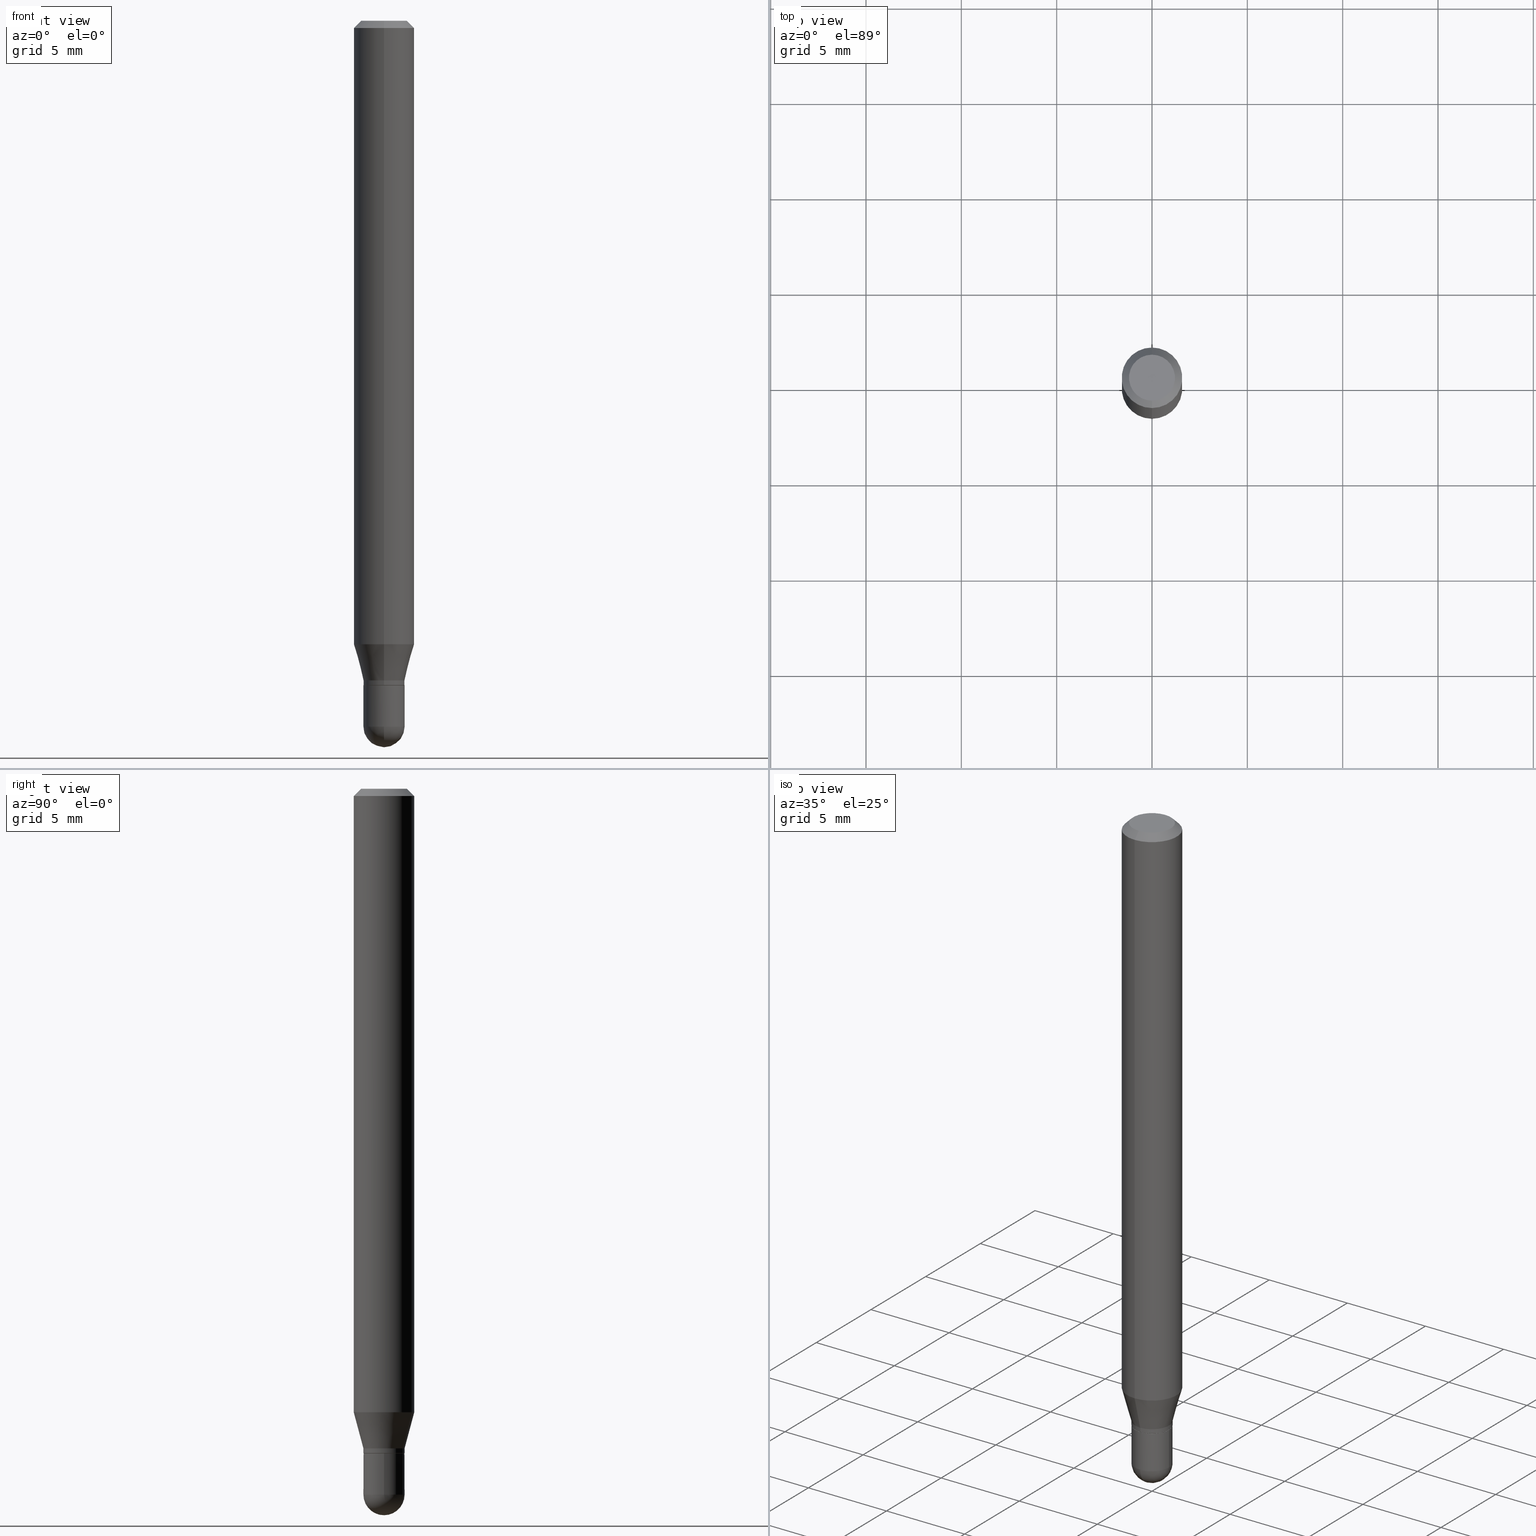
[diagram: canonical four-view strip — front | top / right | iso, engineering-drawing reading convention]
A machine part, canonical four-view strip (front | top / right | iso — engineering-drawing reading convention). The complete STEP part file that produces these views, byte-faithful:
ISO-10303-21;
HEADER;
FILE_DESCRIPTION (( 'STEP AP203' ),
    '1' );
FILE_NAME ('02529.STEP',
    '2024-03-07T20:15:55',
    ( '' ),
    ( '' ),
    'SwSTEP 2.0',
    'SolidWorks 2023',
    '' );
FILE_SCHEMA (( 'CONFIG_CONTROL_DESIGN' ));
ENDSEC;

DATA;
#1 = DIRECTION ( 'NONE',  ( -6.982962677686265922E-15, -1.000000000000000000, 6.427877632151193188E-15 ) ) ;
#2 = FACE_OUTER_BOUND ( 'NONE', #19, .T. ) ;
#3 = LINE ( 'NONE', #79, #253 ) ;
#4 = FACE_OUTER_BOUND ( 'NONE', #69, .T. ) ;
#5 = DIRECTION ( 'NONE',  ( -2.445394468719780989E-29, 3.491587794324560733E-15, 1.000000000000000000 ) ) ;
#6 = AXIS2_PLACEMENT_3D ( 'NONE', #236, #46, #199 ) ;
#7 = DIRECTION ( 'NONE',  ( 6.982962677686265922E-15, 1.000000000000000000, -3.483106191921935554E-15 ) ) ;
#8 = AXIS2_PLACEMENT_3D ( 'NONE', #455, #10, #167 ) ;
#9 = EDGE_CURVE ( 'NONE', #230, #142, #73, .T. ) ;
#10 = DIRECTION ( 'NONE',  ( -2.445394468719780989E-29, 3.491587794324560733E-15, 1.000000000000000000 ) ) ;
#11 = FACE_OUTER_BOUND ( 'NONE', #272, .T. ) ;
#12 = ORIENTED_EDGE ( 'NONE', *, *, #121, .F. ) ;
#13 = DIRECTION ( 'NONE',  ( 1.000000000000000000, 0.000000000000000000, 0.000000000000000000 ) ) ;
#14 = AXIS2_PLACEMENT_3D ( 'NONE', #249, #368, #246 ) ;
#15 = DATE_TIME_ROLE ( 'classification_date' ) ;
#16 = CC_DESIGN_PERSON_AND_ORGANIZATION_ASSIGNMENT ( #370, #407, ( #392 ) ) ;
#17 = DATE_AND_TIME ( #291, #104 ) ;
#18 = CARTESIAN_POINT ( 'NONE',  ( 3.355081211083539428E-29, -4.790458453813298029E-15, -1.372000000000000108 ) ) ;
#19 = EDGE_LOOP ( 'NONE', ( #446, #501, #499, #308 ) ) ;
#20 = DIRECTION ( 'NONE',  ( -2.445394468719780989E-29, 3.491587794324560733E-15, 1.000000000000000000 ) ) ;
#21 = AXIS2_PLACEMENT_3D ( 'NONE', #24, #299, #413 ) ;
#22 = AXIS2_PLACEMENT_3D ( 'NONE', #129, #474, #13 ) ;
#23 = VERTEX_POINT ( 'NONE', #362 ) ;
#24 = CARTESIAN_POINT ( 'NONE',  ( 3.560636328285825248E-29, -5.094038800260261442E-15, -1.457500000000000240 ) ) ;
#25 = ORIENTED_EDGE ( 'NONE', *, *, #77, .F. ) ;
#26 = DIRECTION ( 'NONE',  ( -6.982962677686265922E-15, -1.000000000000000000, 3.483106191921935554E-15 ) ) ;
#27 = CC_DESIGN_DATE_AND_TIME_ASSIGNMENT ( #220, #15, ( #217 ) ) ;
#28 = ORIENTED_EDGE ( 'NONE', *, *, #228, .F. ) ;
#29 = DIRECTION ( 'NONE',  ( -2.445394468719780989E-29, 3.491587794324560733E-15, 1.000000000000000000 ) ) ;
#30 = VECTOR ( 'NONE', #484, 39.37007874015748143 ) ;
#31 = VERTEX_POINT ( 'NONE', #154 ) ;
#32 = AXIS2_PLACEMENT_3D ( 'NONE', #307, #29, #112 ) ;
#33 = DIRECTION ( 'NONE',  ( -6.982962677686265922E-15, -1.000000000000000000, 6.504399984914913214E-15 ) ) ;
#34 = EDGE_LOOP ( 'NONE', ( #284, #140, #419, #267 ) ) ;
#35 = PRODUCT_RELATED_PRODUCT_CATEGORY ( 'detail', '', ( #282 ) ) ;
#36 = DIRECTION ( 'NONE',  ( -2.445394468719780989E-29, 3.491587794324560733E-15, 1.000000000000000000 ) ) ;
#37 = ORIENTED_EDGE ( 'NONE', *, *, #488, .F. ) ;
#38 = CARTESIAN_POINT ( 'NONE',  ( -2.932844324627895747E-16, -0.04200000000000478351, -1.371999999999999664 ) ) ;
#39 = DIRECTION ( 'NONE',  ( -6.982962677686265922E-15, -1.000000000000000000, 6.504399984914913214E-15 ) ) ;
#40 = AXIS2_PLACEMENT_3D ( 'NONE', #377, #218, #48 ) ;
#41 = CC_DESIGN_APPROVAL ( #146, ( #119 ) ) ;
#42 = PERSON ( 'UNSPECIFIED', 'UNSPECIFIED', 'UNSPECIFIED', ('UNSPECIFIED'), ('UNSPECIFIED'), ('UNSPECIFIED') ) ;
#43 = PRODUCT_DEFINITION_SHAPE ( 'NONE', 'NONE',  #119 ) ;
#44 = FACE_OUTER_BOUND ( 'NONE', #113, .T. ) ;
#45 = DIRECTION ( 'NONE',  ( -2.445394468719780989E-29, 3.491587794324560733E-15, 1.000000000000000000 ) ) ;
#46 = DIRECTION ( 'NONE',  ( -2.445394468719780989E-29, 3.491587794324560733E-15, 1.000000000000000000 ) ) ;
#47 = APPLICATION_PROTOCOL_DEFINITION ( 'international standard', 'config_control_design', 1994, #435 ) ;
#48 = DIRECTION ( 'NONE',  ( -6.982962677686265922E-15, -1.000000000000000000, 4.370956789862821150E-15 ) ) ;
#49 = EDGE_CURVE ( 'NONE', #116, #31, #68, .T. ) ;
#50 = COORDINATED_UNIVERSAL_TIME_OFFSET ( 5, 0, .BEHIND. ) ;
#51 = CARTESIAN_POINT ( 'NONE',  ( -4.287811248607203282E-16, -0.06250000000000005551, -0.01500000000000011047 ) ) ;
#52 = ORIENTED_EDGE ( 'NONE', *, *, #9, .F. ) ;
#53 = APPROVAL_DATE_TIME ( #252, #71 ) ;
#54 = AXIS2_PLACEMENT_3D ( 'NONE', #200, #147, #26 ) ;
#55 = FACE_OUTER_BOUND ( 'NONE', #504, .T. ) ;
#56 = ORIENTED_EDGE ( 'NONE', *, *, #319, .T. ) ;
#57 = DIRECTION ( 'NONE',  ( -2.445468806185136597E-29, 3.491481338843145583E-15, 1.000000000000000000 ) ) ;
#58 = VERTEX_POINT ( 'NONE', #509 ) ;
#59 = CARTESIAN_POINT ( 'NONE',  ( 3.564270785014837509E-29, -5.088834051363884851E-15, -1.457500000000000240 ) ) ;
#60 = AXIS2_PLACEMENT_3D ( 'NONE', #59, #302, #460 ) ;
#61 = CONICAL_SURFACE ( 'NONE', #239, 0.06250000000000000000, 0.7853981633974483900 ) ;
#62 = ORIENTED_EDGE ( 'NONE', *, *, #183, .T. ) ;
#63 = DIRECTION ( 'NONE',  ( -2.445394468719780989E-29, 3.491587794324560733E-15, 1.000000000000000000 ) ) ;
#64 = ORIENTED_EDGE ( 'NONE', *, *, #315, .T. ) ;
#65 = CARTESIAN_POINT ( 'NONE',  ( 8.024363653944371888E-45, -1.145736221690308008E-30, -3.281418910767924715E-16 ) ) ;
#66 = ORIENTED_EDGE ( 'NONE', *, *, #95, .T. ) ;
#67 = DIRECTION ( 'NONE',  ( 1.000000000000000000, -6.982962677686266711E-15, 4.876176775795935793E-29 ) ) ;
#68 = CIRCLE ( 'NONE', #6, 0.04249999999999991979 ) ;
#69 = EDGE_LOOP ( 'NONE', ( #343, #409, #56, #461 ) ) ;
#70 = AXIS2_PLACEMENT_3D ( 'NONE', #18, #271, #463 ) ;
#71 = APPROVAL ( #176, 'UNSPECIFIED' ) ;
#72 = DIRECTION ( 'NONE',  ( 6.982962677686265922E-15, 1.000000000000000000, -3.491587794324560733E-15 ) ) ;
#73 = LINE ( 'NONE', #475, #324 ) ;
#74 = EDGE_CURVE ( 'NONE', #373, #23, #224, .T. ) ;
#75 = FACE_OUTER_BOUND ( 'NONE', #223, .T. ) ;
#76 = DIRECTION ( 'NONE',  ( -2.445394468719780989E-29, 3.491587794324560733E-15, 1.000000000000000000 ) ) ;
#77 = EDGE_CURVE ( 'NONE', #303, #171, #273, .T. ) ;
#78 = CARTESIAN_POINT ( 'NONE',  ( 3.019806626980753384E-16, 0.04249999999999517358, -1.362000000000000766 ) ) ;
#79 = CARTESIAN_POINT ( 'NONE',  ( 4.440892098500625669E-16, 0.06250000000000000000, -2.182242371452850211E-16 ) ) ;
#80 = LOCAL_TIME ( 15, 15, 55.00000000000000000, #371 ) ;
#81 = PERSON_AND_ORGANIZATION ( #42, #356 ) ;
#82 = ADVANCED_FACE ( 'NONE', ( #44 ), #506, .T. ) ;
#83 = DIRECTION ( 'NONE',  ( -2.445394468719780989E-29, 3.491587794324560733E-15, 1.000000000000000000 ) ) ;
#84 = EDGE_LOOP ( 'NONE', ( #496, #62, #375, #232 ) ) ;
#85 =( CONVERSION_BASED_UNIT ( 'INCH', #281 ) LENGTH_UNIT ( ) NAMED_UNIT ( #424 ) );
#86 = CARTESIAN_POINT ( 'NONE',  ( 3.019806626980785432E-16, 0.04249999999999495154, -1.457500000000000462 ) ) ;
#87 = AXIS2_PLACEMENT_3D ( 'NONE', #482, #495, #97 ) ;
#88 = AXIS2_PLACEMENT_3D ( 'NONE', #106, #309, #305 ) ;
#89 = DIRECTION ( 'NONE',  ( -2.445394468719780989E-29, 3.491587794324560733E-15, 1.000000000000000000 ) ) ;
#90 = ORIENTED_EDGE ( 'NONE', *, *, #108, .F. ) ;
#91 = PERSON_AND_ORGANIZATION_ROLE ( 'classification_officer' ) ;
#92 = COORDINATED_UNIVERSAL_TIME_OFFSET ( 5, 0, .BEHIND. ) ;
#93 = CIRCLE ( 'NONE', #60, 0.04250000000000000999 ) ;
#94 = VECTOR ( 'NONE', #380, 39.37007874015748143 ) ;
#95 = EDGE_CURVE ( 'NONE', #256, #373, #210, .T. ) ;
#96 = COORDINATED_UNIVERSAL_TIME_OFFSET ( 5, 0, .BEHIND. ) ;
#97 = DIRECTION ( 'NONE',  ( -6.982962677686266711E-15, -1.000000000000000000, 3.491587794324560733E-15 ) ) ;
#98 = EDGE_CURVE ( 'NONE', #326, #142, #3, .T. ) ;
#99 = ORIENTED_EDGE ( 'NONE', *, *, #175, .F. ) ;
#100 = PERSON_AND_ORGANIZATION ( #42, #356 ) ;
#101 = FACE_OUTER_BOUND ( 'NONE', #436, .T. ) ;
#102 = ORIENTED_EDGE ( 'NONE', *, *, #488, .T. ) ;
#103 = CARTESIAN_POINT ( 'NONE',  ( 3.730349362740847299E-16, 0.04249999999999517358, -1.362000000000000766 ) ) ;
#104 = LOCAL_TIME ( 15, 15, 55.00000000000000000, #358 ) ;
#105 = ORIENTED_EDGE ( 'NONE', *, *, #422, .T. ) ;
#106 = CARTESIAN_POINT ( 'NONE',  ( 3.564270785014837509E-29, -5.088834051363884851E-15, -1.457500000000000240 ) ) ;
#107 = ORIENTED_EDGE ( 'NONE', *, *, #228, .T. ) ;
#108 = EDGE_CURVE ( 'NONE', #387, #262, #485, .T. ) ;
#109 = PLANE ( 'NONE',  #502 ) ;
#110 = EDGE_CURVE ( 'NONE', #168, #230, #216, .T. ) ;
#111 = ORIENTED_EDGE ( 'NONE', *, *, #292, .T. ) ;
#112 = DIRECTION ( 'NONE',  ( -6.982962677686265922E-15, -1.000000000000000000, 4.370956789862821150E-15 ) ) ;
#113 = EDGE_LOOP ( 'NONE', ( #186, #184, #145, #25 ) ) ;
#114 = CIRCLE ( 'NONE', #88, 0.04250000000000000999 ) ;
#115 = CARTESIAN_POINT ( 'NONE',  ( 0.04250000000000000999, -5.236349137930008608E-15, -1.457500000000000240 ) ) ;
#116 = VERTEX_POINT ( 'NONE', #122 ) ;
#117 = APPROVAL_DATE_TIME ( #364, #146 ) ;
#118 = DIRECTION ( 'NONE',  ( 4.937700262164548042E-15, 0.7071067811865451302, -0.7071067811865499042 ) ) ;
#119 = PRODUCT_DEFINITION ( 'UNKNOWN', '', #392, #353 ) ;
#120 = CARTESIAN_POINT ( 'NONE',  ( 3.560636328285825248E-29, -5.094038800260261442E-15, -1.457500000000000240 ) ) ;
#121 = EDGE_CURVE ( 'NONE', #301, #385, #344, .T. ) ;
#122 = CARTESIAN_POINT ( 'NONE',  ( -2.967759138016312999E-16, -0.04250000000000458272, -1.371499999999999941 ) ) ;
#123 = AXIS2_PLACEMENT_3D ( 'NONE', #512, #237, #67 ) ;
#124 = DIRECTION ( 'NONE',  ( 1.000000000000000000, -6.982962677686265922E-15, 4.883557194083112901E-29 ) ) ;
#125 = DIRECTION ( 'NONE',  ( 1.839019923739598738E-15, 0.2588190451025247363, 0.9659258262890673130 ) ) ;
#126 = CC_DESIGN_PERSON_AND_ORGANIZATION_ASSIGNMENT ( #134, #457, ( #392 ) ) ;
#127 = LINE ( 'NONE', #137, #451 ) ;
#128 = ORIENTED_EDGE ( 'NONE', *, *, #393, .T. ) ;
#129 = CARTESIAN_POINT ( 'NONE',  ( 0.000000000000000000, 0.000000000000000000, 0.000000000000000000 ) ) ;
#130 = LINE ( 'NONE', #442, #293 ) ;
#131 = AXIS2_PLACEMENT_3D ( 'NONE', #170, #338, #334 ) ;
#132 = LOCAL_TIME ( 15, 15, 55.00000000000000000, #50 ) ;
#133 = ADVANCED_FACE ( 'NONE', ( #204 ), #162, .T. ) ;
#134 = PERSON_AND_ORGANIZATION ( #42, #356 ) ;
#135 = SECURITY_CLASSIFICATION_LEVEL ( 'unclassified' ) ;
#136 = AXIS2_PLACEMENT_3D ( 'NONE', #389, #5, #39 ) ;
#137 = CARTESIAN_POINT ( 'NONE',  ( -2.967759138016657633E-16, -0.04249999999999991979, 1.483924812587935590E-16 ) ) ;
#138 = ORIENTED_EDGE ( 'NONE', *, *, #110, .T. ) ;
#139 = CARTESIAN_POINT ( 'NONE',  ( 3.560636328285825248E-29, -5.094038800260261442E-15, -1.457500000000000240 ) ) ;
#140 = ORIENTED_EDGE ( 'NONE', *, *, #348, .T. ) ;
#141 = CARTESIAN_POINT ( 'NONE',  ( 3.668091703079751796E-31, -5.237381691486955188E-17, -0.01500000000000032904 ) ) ;
#142 = VERTEX_POINT ( 'NONE', #157 ) ;
#143 = FACE_OUTER_BOUND ( 'NONE', #494, .T. ) ;
#144 = CC_DESIGN_APPROVAL ( #360, ( #392 ) ) ;
#145 = ORIENTED_EDGE ( 'NONE', *, *, #331, .F. ) ;
#146 = APPROVAL ( #321, 'UNSPECIFIED' ) ;
#147 = DIRECTION ( 'NONE',  ( -2.445394468719780989E-29, 3.491587794324560733E-15, 1.000000000000000000 ) ) ;
#148 = EDGE_LOOP ( 'NONE', ( #99, #347, #440, #250, #464 ) ) ;
#149 = LINE ( 'NONE', #346, #202 ) ;
#150 = CARTESIAN_POINT ( 'NONE',  ( 0.000000000000000000, 0.000000000000000000, 0.000000000000000000 ) ) ;
#151 = CARTESIAN_POINT ( 'NONE',  ( 3.330627266396342627E-29, -4.755542575870053124E-15, -1.362000000000000322 ) ) ;
#152 = EDGE_CURVE ( 'NONE', #168, #171, #438, .T. ) ;
#153 = VECTOR ( 'NONE', #125, 39.37007874015748854 ) ;
#154 = CARTESIAN_POINT ( 'NONE',  ( 3.019806626980764231E-16, 0.04249999999999526379, -1.371500000000000385 ) ) ;
#155 = AXIS2_PLACEMENT_3D ( 'NONE', #141, #397, #247 ) ;
#156 = FACE_OUTER_BOUND ( 'NONE', #219, .T. ) ;
#157 = CARTESIAN_POINT ( 'NONE',  ( 4.440892098500942692E-16, 0.06249999999999995143, -0.01500000000000054588 ) ) ;
#158 = EDGE_CURVE ( 'NONE', #350, #256, #93, .T. ) ;
#159 = FACE_OUTER_BOUND ( 'NONE', #189, .T. ) ;
#160 = ORIENTED_EDGE ( 'NONE', *, *, #77, .T. ) ;
#161 = CARTESIAN_POINT ( 'NONE',  ( 3.355081211083539428E-29, -4.790458453813298029E-15, -1.372000000000000108 ) ) ;
#162 = SPHERICAL_SURFACE ( 'NONE', #477, 0.04250000000000009326 ) ;
#163 = AXIS2_PLACEMENT_3D ( 'NONE', #374, #20, #492 ) ;
#164 = AXIS2_PLACEMENT_3D ( 'NONE', #65, #63, #467 ) ;
#165 = DIRECTION ( 'NONE',  ( -6.982962677686265922E-15, -1.000000000000000000, 6.504399984914913214E-15 ) ) ;
#166 = EDGE_CURVE ( 'NONE', #326, #303, #469, .T. ) ;
#167 = DIRECTION ( 'NONE',  ( -6.982962677686265133E-15, -1.000000000000000000, 6.427877632151217642E-15 ) ) ;
#168 = VERTEX_POINT ( 'NONE', #213 ) ;
#169 = CARTESIAN_POINT ( 'NONE',  ( 3.668091703079751796E-31, -5.237381691486955188E-17, -0.01500000000000032904 ) ) ;
#170 = CARTESIAN_POINT ( 'NONE',  ( 3.355081211083539428E-29, -4.790458453813298029E-15, -1.372000000000000108 ) ) ;
#171 = VERTEX_POINT ( 'NONE', #327 ) ;
#172 = DIRECTION ( 'NONE',  ( -6.982962677686265922E-15, -1.000000000000000000, 6.427877632151193188E-15 ) ) ;
#173 = AXIS2_PLACEMENT_3D ( 'NONE', #139, #458, #257 ) ;
#174 =( GEOMETRIC_REPRESENTATION_CONTEXT ( 3 ) GLOBAL_UNCERTAINTY_ASSIGNED_CONTEXT ( ( #447 ) ) GLOBAL_UNIT_ASSIGNED_CONTEXT ( ( #85, #323, #206 ) ) REPRESENTATION_CONTEXT ( 'NONE', 'WORKASPACE' ) );
#175 = EDGE_CURVE ( 'NONE', #373, #58, #130, .T. ) ;
#176 = APPROVAL_STATUS ( 'not_yet_approved' ) ;
#177 = CARTESIAN_POINT ( 'NONE',  ( 3.840629472727447874E-16, 0.04749999999999999362, -4.939923113072091241E-16 ) ) ;
#178 = ORIENTED_EDGE ( 'NONE', *, *, #335, .F. ) ;
#179 = DATE_TIME_ROLE ( 'creation_date' ) ;
#180 = AXIS2_PLACEMENT_3D ( 'NONE', #207, #76, #240 ) ;
#181 = AXIS2_PLACEMENT_3D ( 'NONE', #161, #391, #165 ) ;
#182 = FACE_OUTER_BOUND ( 'NONE', #379, .T. ) ;
#183 = EDGE_CURVE ( 'NONE', #298, #23, #354, .T. ) ;
#184 = ORIENTED_EDGE ( 'NONE', *, *, #98, .T. ) ;
#185 = CARTESIAN_POINT ( 'NONE',  ( 0.000000000000000000, 0.000000000000000000, 0.000000000000000000 ) ) ;
#186 = ORIENTED_EDGE ( 'NONE', *, *, #416, .T. ) ;
#187 = DIRECTION ( 'NONE',  ( -1.000000000000000000, 6.982962677686265922E-15, -4.876176775795935793E-29 ) ) ;
#188 = ADVANCED_FACE ( 'NONE', ( #101 ), #390, .T. ) ;
#189 = EDGE_LOOP ( 'NONE', ( #381, #318, #352, #196 ) ) ;
#190 = CC_DESIGN_PERSON_AND_ORGANIZATION_ASSIGNMENT ( #81, #241, ( #282 ) ) ;
#191 = CARTESIAN_POINT ( 'NONE',  ( -0.04250000000000000999, -4.637592561430298716E-15, -1.457500000000000240 ) ) ;
#192 = CLOSED_SHELL ( 'NONE', ( #203, #242, #188, #82, #363, #275, #197, #487, #427, #310, #498, #476 ) ) ;
#193 = CIRCLE ( 'NONE', #294, 0.04249999999999991979 ) ;
#194 = ORIENTED_EDGE ( 'NONE', *, *, #418, .F. ) ;
#195 = PLANE ( 'NONE',  #437 ) ;
#196 = ORIENTED_EDGE ( 'NONE', *, *, #264, .T. ) ;
#197 = ADVANCED_FACE ( 'NONE', ( #225 ), #367, .T. ) ;
#198 = CARTESIAN_POINT ( 'NONE',  ( 2.984279490192755246E-16, 0.04199999999999520783, -1.372000000000000330 ) ) ;
#199 = DIRECTION ( 'NONE',  ( -6.982962677686266711E-15, -1.000000000000000000, 6.427877632151220009E-15 ) ) ;
#200 = CARTESIAN_POINT ( 'NONE',  ( 3.668091703079751796E-31, -5.237381691486955188E-17, -0.01500000000000032904 ) ) ;
#201 = CLOSED_SHELL ( 'NONE', ( #215, #508, #406, #133, #333 ) ) ;
#202 = VECTOR ( 'NONE', #36, 39.37007874015748143 ) ;
#203 = ADVANCED_FACE ( 'NONE', ( #11 ), #328, .T. ) ;
#204 = FACE_OUTER_BOUND ( 'NONE', #84, .T. ) ;
#205 = DIRECTION ( 'NONE',  ( -2.445468806185136597E-29, 3.491481338843145583E-15, 1.000000000000000000 ) ) ;
#206 =( NAMED_UNIT ( * ) SI_UNIT ( $, .STERADIAN. ) SOLID_ANGLE_UNIT ( ) );
#207 = CARTESIAN_POINT ( 'NONE',  ( 3.330627266396342627E-29, -4.755542575870053124E-15, -1.362000000000000322 ) ) ;
#208 = CARTESIAN_POINT ( 'NONE',  ( 3.355183202086007133E-29, -4.790312396892795908E-15, -1.372000000000000108 ) ) ;
#209 = DIRECTION ( 'NONE',  ( -2.445394468719780989E-29, 3.491587794324560733E-15, 1.000000000000000000 ) ) ;
#210 = CIRCLE ( 'NONE', #312, 0.04250000000000000999 ) ;
#211 = CIRCLE ( 'NONE', #32, 0.06250000000000000000 ) ;
#212 = CALENDAR_DATE ( 2024, 7, 3 ) ;
#213 = CARTESIAN_POINT ( 'NONE',  ( -3.773273898774340269E-16, -0.04749999999999999362, -1.622914708463758436E-16 ) ) ;
#214 = APPLICATION_PROTOCOL_DEFINITION ( 'international standard', 'config_control_design', 1994, #222 ) ;
#215 = ADVANCED_FACE ( 'NONE', ( #182 ), #410, .T. ) ;
#216 = CIRCLE ( 'NONE', #365, 0.04749999999999999362 ) ;
#217 = SECURITY_CLASSIFICATION ( '', '', #135 ) ;
#218 = DIRECTION ( 'NONE',  ( -2.445394468719780989E-29, 3.491587794324560733E-15, 1.000000000000000000 ) ) ;
#219 = EDGE_LOOP ( 'NONE', ( #265, #414, #227, #402 ) ) ;
#220 = DATE_AND_TIME ( #450, #277 ) ;
#221 = DIRECTION ( 'NONE',  ( -6.982962677686266711E-15, -1.000000000000000000, 6.427877632151220009E-15 ) ) ;
#222 = APPLICATION_CONTEXT ( 'configuration controlled 3d designs of mechanical parts and assemblies' ) ;
#223 = EDGE_LOOP ( 'NONE', ( #423, #138 ) ) ;
#224 = CIRCLE ( 'NONE', #399, 0.04250000000000000999 ) ;
#225 = FACE_OUTER_BOUND ( 'NONE', #383, .T. ) ;
#226 = CC_DESIGN_SECURITY_CLASSIFICATION ( #217, ( #392 ) ) ;
#227 = ORIENTED_EDGE ( 'NONE', *, *, #416, .F. ) ;
#228 = EDGE_CURVE ( 'NONE', #116, #262, #127, .T. ) ;
#229 = DIRECTION ( 'NONE',  ( 2.438088387897960049E-29, -3.491481338843145188E-15, -1.000000000000000000 ) ) ;
#230 = VERTEX_POINT ( 'NONE', #177 ) ;
#231 = FACE_OUTER_BOUND ( 'NONE', #148, .T. ) ;
#232 = ORIENTED_EDGE ( 'NONE', *, *, #95, .F. ) ;
#233 = LINE ( 'NONE', #500, #369 ) ;
#234 = ORIENTED_EDGE ( 'NONE', *, *, #110, .F. ) ;
#235 = CARTESIAN_POINT ( 'NONE',  ( 4.440892098500941706E-16, 0.06249999999999553135, -1.287358983848623017 ) ) ;
#236 = CARTESIAN_POINT ( 'NONE',  ( 3.353858513849179896E-29, -4.788712659916135389E-15, -1.371500000000000163 ) ) ;
#237 = DIRECTION ( 'NONE',  ( -2.445468806185136597E-29, 3.491481338843145583E-15, 1.000000000000000000 ) ) ;
#238 = DIRECTION ( 'NONE',  ( -6.982962677686266711E-15, -1.000000000000000000, 3.491587794324561127E-15 ) ) ;
#239 = AXIS2_PLACEMENT_3D ( 'NONE', #169, #274, #7 ) ;
#240 = DIRECTION ( 'NONE',  ( -6.982962677686265133E-15, -1.000000000000000000, 6.427877632151217642E-15 ) ) ;
#241 = PERSON_AND_ORGANIZATION_ROLE ( 'design_owner' ) ;
#242 = ADVANCED_FACE ( 'NONE', ( #283 ), #286, .T. ) ;
#243 = EDGE_CURVE ( 'NONE', #298, #256, #330, .T. ) ;
#244 = DIRECTION ( 'NONE',  ( -2.445394468719780989E-29, 3.491587794324560733E-15, 1.000000000000000000 ) ) ;
#245 = DIRECTION ( 'NONE',  ( 1.000000000000000000, -6.982962677686276177E-15, 0.000000000000000000 ) ) ;
#246 = DIRECTION ( 'NONE',  ( 6.982962677686265922E-15, 1.000000000000000000, -3.483106191921935554E-15 ) ) ;
#247 = DIRECTION ( 'NONE',  ( -6.982962677686265922E-15, -1.000000000000000000, 3.483106191921935554E-15 ) ) ;
#248 = CARTESIAN_POINT ( 'NONE',  ( 0.000000000000000000, 0.000000000000000000, 0.000000000000000000 ) ) ;
#249 = CARTESIAN_POINT ( 'NONE',  ( 3.668091703079751796E-31, -5.237381691486955188E-17, -0.01500000000000032904 ) ) ;
#250 = ORIENTED_EDGE ( 'NONE', *, *, #335, .T. ) ;
#251 = ADVANCED_BREP_SHAPE_REPRESENTATION ( '02529', ( #300, #297, #22 ), #174 ) ;
#252 = DATE_AND_TIME ( #329, #453 ) ;
#253 = VECTOR ( 'NONE', #244, 39.37007874015748143 ) ;
#254 = VECTOR ( 'NONE', #417, 39.37007874015748143 ) ;
#255 = DIRECTION ( 'NONE',  ( -2.445468806185136877E-29, 3.491481338843145188E-15, 1.000000000000000000 ) ) ;
#256 = VERTEX_POINT ( 'NONE', #86 ) ;
#257 = DIRECTION ( 'NONE',  ( 7.105427357601001070E-15, 1.000000000000000000, 0.000000000000000000 ) ) ;
#258 = ORIENTED_EDGE ( 'NONE', *, *, #264, .F. ) ;
#259 = VECTOR ( 'NONE', #394, 39.37007874015748143 ) ;
#260 = APPROVAL_PERSON_ORGANIZATION ( #395, #146, #398 ) ;
#261 = DIRECTION ( 'NONE',  ( -2.445468806185136877E-29, 3.491481338843145188E-15, 1.000000000000000000 ) ) ;
#262 = VERTEX_POINT ( 'NONE', #497 ) ;
#263 = DIRECTION ( 'NONE',  ( -6.982962677686265133E-15, -1.000000000000000000, 6.427877632151217642E-15 ) ) ;
#264 = EDGE_CURVE ( 'NONE', #142, #171, #428, .T. ) ;
#265 = ORIENTED_EDGE ( 'NONE', *, *, #420, .T. ) ;
#266 = DIRECTION ( 'NONE',  ( -2.445394468719780989E-29, 3.491587794324560733E-15, 1.000000000000000000 ) ) ;
#267 = ORIENTED_EDGE ( 'NONE', *, *, #319, .F. ) ;
#268 = CARTESIAN_POINT ( 'NONE',  ( 3.316907271900976096E-16, 0.04749999999999999362, -3.299213657688128390E-16 ) ) ;
#269 = CARTESIAN_POINT ( 'NONE',  ( 8.024363653944371888E-45, -1.145736221690308008E-30, -3.281418910767924715E-16 ) ) ;
#270 = CC_DESIGN_PERSON_AND_ORGANIZATION_ASSIGNMENT ( #290, #91, ( #217 ) ) ;
#271 = DIRECTION ( 'NONE',  ( -2.445394468719780429E-29, 3.491587794324560733E-15, 1.000000000000000000 ) ) ;
#272 = EDGE_LOOP ( 'NONE', ( #359, #64, #336, #28 ) ) ;
#273 = LINE ( 'NONE', #311, #259 ) ;
#274 = DIRECTION ( 'NONE',  ( 2.445394468719780989E-29, -3.491587794324560733E-15, -1.000000000000000000 ) ) ;
#275 = ADVANCED_FACE ( 'NONE', ( #296 ), #376, .T. ) ;
#276 = AXIS2_PLACEMENT_3D ( 'NONE', #150, #83, #471 ) ;
#277 = LOCAL_TIME ( 15, 15, 55.00000000000000000, #96 ) ;
#278 = CC_DESIGN_APPROVAL ( #71, ( #217 ) ) ;
#279 = MECHANICAL_CONTEXT ( 'NONE', #222, 'mechanical' ) ;
#280 = CARTESIAN_POINT ( 'NONE',  ( 3.564270785014837509E-29, -5.088834051363884851E-15, -1.457500000000000240 ) ) ;
#281 = LENGTH_MEASURE_WITH_UNIT ( LENGTH_MEASURE( 0.02539999999999999897 ), #439 );
#282 = PRODUCT ( '02529', '02529', '', ( #279 ) ) ;
#283 = FACE_OUTER_BOUND ( 'NONE', #34, .T. ) ;
#284 = ORIENTED_EDGE ( 'NONE', *, *, #121, .T. ) ;
#285 = PERSON_AND_ORGANIZATION ( #42, #356 ) ;
#286 = CONICAL_SURFACE ( 'NONE', #131, 0.04199999999999999567, 0.7853981633974739252 ) ;
#287 = CARTESIAN_POINT ( 'NONE',  ( 3.662751524184187344E-29, -5.245029131609283457E-15, -1.500000000000000444 ) ) ;
#288 = CIRCLE ( 'NONE', #444, 0.04249999999999993366 ) ;
#289 = ORIENTED_EDGE ( 'NONE', *, *, #175, .T. ) ;
#290 = PERSON_AND_ORGANIZATION ( #42, #356 ) ;
#291 = CALENDAR_DATE ( 2024, 7, 3 ) ;
#292 = EDGE_CURVE ( 'NONE', #31, #116, #193, .T. ) ;
#293 = VECTOR ( 'NONE', #255, 39.37007874015748143 ) ;
#294 = AXIS2_PLACEMENT_3D ( 'NONE', #401, #89, #221 ) ;
#295 = CALENDAR_DATE ( 2024, 7, 3 ) ;
#296 = FACE_OUTER_BOUND ( 'NONE', #426, .T. ) ;
#297 = MANIFOLD_SOLID_BREP ( 'Body-Move/Copy2[2]', #192 ) ;
#298 = VERTEX_POINT ( 'NONE', #287 ) ;
#299 = DIRECTION ( 'NONE',  ( -1.000000000000000000, 6.982962677686265922E-15, -4.883557194083112340E-29 ) ) ;
#300 = MANIFOLD_SOLID_BREP ( 'Body-Move/Copy2[1]', #201 ) ;
#301 = VERTEX_POINT ( 'NONE', #445 ) ;
#302 = DIRECTION ( 'NONE',  ( -2.445468806185136597E-29, 3.491481338843145583E-15, 1.000000000000000000 ) ) ;
#303 = VERTEX_POINT ( 'NONE', #405 ) ;
#304 = APPROVAL_PERSON_ORGANIZATION ( #448, #360, #332 ) ;
#305 = DIRECTION ( 'NONE',  ( 1.000000000000000000, -6.982962677686273810E-15, 0.000000000000000000 ) ) ;
#306 = ORIENTED_EDGE ( 'NONE', *, *, #331, .T. ) ;
#307 = CARTESIAN_POINT ( 'NONE',  ( 3.148100538360140027E-29, -4.494926914919920773E-15, -1.287358983848622795 ) ) ;
#308 = ORIENTED_EDGE ( 'NONE', *, *, #378, .F. ) ;
#309 = DIRECTION ( 'NONE',  ( -2.445468806185136597E-29, 3.491481338843145583E-15, 1.000000000000000000 ) ) ;
#310 = ADVANCED_FACE ( 'NONE', ( #55 ), #372, .F. ) ;
#311 = CARTESIAN_POINT ( 'NONE',  ( -4.364351673553916201E-16, -0.06250000000000000000, 2.182242371452850211E-16 ) ) ;
#312 = AXIS2_PLACEMENT_3D ( 'NONE', #396, #433, #480 ) ;
#313 = FACE_OUTER_BOUND ( 'NONE', #466, .T. ) ;
#314 = CONICAL_SURFACE ( 'NONE', #429, 0.04249999999999993366, 0.2617993877991500740 ) ;
#315 = EDGE_CURVE ( 'NONE', #31, #387, #149, .T. ) ;
#316 = DIRECTION ( 'NONE',  ( 1.000000000000000000, -6.982962677686273810E-15, 0.000000000000000000 ) ) ;
#317 = DIRECTION ( 'NONE',  ( -2.445394468719780989E-29, 3.491587794324560733E-15, 1.000000000000000000 ) ) ;
#318 = ORIENTED_EDGE ( 'NONE', *, *, #403, .F. ) ;
#319 = EDGE_CURVE ( 'NONE', #301, #116, #355, .T. ) ;
#320 = CC_DESIGN_PERSON_AND_ORGANIZATION_ASSIGNMENT ( #285, #434, ( #119 ) ) ;
#321 = APPROVAL_STATUS ( 'not_yet_approved' ) ;
#322 = ORIENTED_EDGE ( 'NONE', *, *, #98, .F. ) ;
#323 =( NAMED_UNIT ( * ) PLANE_ANGLE_UNIT ( ) SI_UNIT ( $, .RADIAN. ) );
#324 = VECTOR ( 'NONE', #118, 39.37007874015748143 ) ;
#325 = CIRCLE ( 'NONE', #493, 0.04199999999999999567 ) ;
#326 = VERTEX_POINT ( 'NONE', #235 ) ;
#327 = CARTESIAN_POINT ( 'NONE',  ( -4.364351673553912750E-16, -0.06250000000000005551, -0.01500000000000011047 ) ) ;
#328 = CYLINDRICAL_SURFACE ( 'NONE', #87, 0.04249999999999991979 ) ;
#329 = CALENDAR_DATE ( 2024, 7, 3 ) ;
#330 = CIRCLE ( 'NONE', #173, 0.04250000000000009326 ) ;
#331 = EDGE_CURVE ( 'NONE', #171, #142, #408, .T. ) ;
#332 = APPROVAL_ROLE ( '' ) ;
#333 = ADVANCED_FACE ( 'NONE', ( #231 ), #349, .T. ) ;
#334 = DIRECTION ( 'NONE',  ( -6.982962677686265922E-15, -1.000000000000000000, 6.504399984914913214E-15 ) ) ;
#335 = EDGE_CURVE ( 'NONE', #350, #443, #421, .T. ) ;
#336 = ORIENTED_EDGE ( 'NONE', *, *, #420, .F. ) ;
#337 = CIRCLE ( 'NONE', #452, 0.04249999999999999611 ) ;
#338 = DIRECTION ( 'NONE',  ( -2.445394468719780989E-29, 3.491587794324560733E-15, 1.000000000000000000 ) ) ;
#339 = ORIENTED_EDGE ( 'NONE', *, *, #158, .T. ) ;
#340 = DIRECTION ( 'NONE',  ( 1.000000000000000000, -6.982962677686266711E-15, 4.876176775795935793E-29 ) ) ;
#341 = ORIENTED_EDGE ( 'NONE', *, *, #108, .T. ) ;
#342 = DIRECTION ( 'NONE',  ( 1.000000000000000000, -6.982962677686276177E-15, 0.000000000000000000 ) ) ;
#343 = ORIENTED_EDGE ( 'NONE', *, *, #348, .F. ) ;
#344 = CIRCLE ( 'NONE', #136, 0.04199999999999999567 ) ;
#345 = APPROVAL_PERSON_ORGANIZATION ( #100, #71, #454 ) ;
#346 = CARTESIAN_POINT ( 'NONE',  ( 3.019806626980419597E-16, 0.04249999999999991979, -1.483924812587935590E-16 ) ) ;
#347 = ORIENTED_EDGE ( 'NONE', *, *, #74, .T. ) ;
#348 = EDGE_CURVE ( 'NONE', #385, #31, #503, .T. ) ;
#349 = CYLINDRICAL_SURFACE ( 'NONE', #123, 0.04250000000000000999 ) ;
#350 = VERTEX_POINT ( 'NONE', #115 ) ;
#351 = DIRECTION ( 'NONE',  ( -2.445468806185136597E-29, 3.491481338843145583E-15, 1.000000000000000000 ) ) ;
#352 = ORIENTED_EDGE ( 'NONE', *, *, #9, .T. ) ;
#353 = DESIGN_CONTEXT ( 'detailed design', #435, 'design' ) ;
#354 = CIRCLE ( 'NONE', #21, 0.04250000000000009326 ) ;
#355 = LINE ( 'NONE', #38, #94 ) ;
#356 = ORGANIZATION ( 'UNSPECIFIED', 'UNSPECIFIED', '' ) ;
#357 = CARTESIAN_POINT ( 'NONE',  ( 3.560636328285825248E-29, -5.094038800260261442E-15, -1.457500000000000240 ) ) ;
#358 = COORDINATED_UNIVERSAL_TIME_OFFSET ( 5, 0, .BEHIND. ) ;
#359 = ORIENTED_EDGE ( 'NONE', *, *, #49, .T. ) ;
#360 = APPROVAL ( #449, 'UNSPECIFIED' ) ;
#361 = DIRECTION ( 'NONE',  ( -6.982962677686266711E-15, -1.000000000000000000, 3.491587794324560733E-15 ) ) ;
#362 = CARTESIAN_POINT ( 'NONE',  ( -2.967759138016310534E-16, -0.04250000000000514477, -1.457500000000000018 ) ) ;
#363 = ADVANCED_FACE ( 'NONE', ( #156 ), #314, .T. ) ;
#364 = DATE_AND_TIME ( #212, #132 ) ;
#365 = AXIS2_PLACEMENT_3D ( 'NONE', #269, #431, #238 ) ;
#366 = VECTOR ( 'NONE', #261, 39.37007874015748143 ) ;
#367 = CYLINDRICAL_SURFACE ( 'NONE', #163, 0.06250000000000000000 ) ;
#368 = DIRECTION ( 'NONE',  ( 2.445394468719780989E-29, -3.491587794324560733E-15, -1.000000000000000000 ) ) ;
#369 = VECTOR ( 'NONE', #384, 39.37007874015748854 ) ;
#370 = PERSON_AND_ORGANIZATION ( #42, #356 ) ;
#371 = COORDINATED_UNIVERSAL_TIME_OFFSET ( 5, 0, .BEHIND. ) ;
#372 = PLANE ( 'NONE',  #70 ) ;
#373 = VERTEX_POINT ( 'NONE', #191 ) ;
#374 = CARTESIAN_POINT ( 'NONE',  ( 0.000000000000000000, 0.000000000000000000, 0.000000000000000000 ) ) ;
#375 = ORIENTED_EDGE ( 'NONE', *, *, #74, .F. ) ;
#376 = CONICAL_SURFACE ( 'NONE', #8, 0.04249999999999993366, 0.2617993877991500740 ) ;
#377 = CARTESIAN_POINT ( 'NONE',  ( 3.148100538360140027E-29, -4.494926914919920773E-15, -1.287358983848622795 ) ) ;
#378 = EDGE_CURVE ( 'NONE', #23, #350, #114, .T. ) ;
#379 = EDGE_LOOP ( 'NONE', ( #66, #289, #37, #178, #339 ) ) ;
#380 = DIRECTION ( 'NONE',  ( -4.937700262164674260E-15, -0.7071067811865632269, 0.7071067811865319186 ) ) ;
#381 = ORIENTED_EDGE ( 'NONE', *, *, #152, .F. ) ;
#382 = CARTESIAN_POINT ( 'NONE',  ( 2.967759138016998322E-16, 0.04249999999999520828, -1.372000000000000330 ) ) ;
#383 = EDGE_LOOP ( 'NONE', ( #322, #473, #160, #258 ) ) ;
#384 = DIRECTION ( 'NONE',  ( -1.807323732225328562E-15, -0.2588190451025179639, 0.9659258262890690894 ) ) ;
#385 = VERTEX_POINT ( 'NONE', #432 ) ;
#386 = CARTESIAN_POINT ( 'NONE',  ( 3.330627266396342627E-29, -4.755542575870053124E-15, -1.362000000000000322 ) ) ;
#387 = VERTEX_POINT ( 'NONE', #103 ) ;
#388 = CARTESIAN_POINT ( 'NONE',  ( 0.04249999999999999611, -5.087088310694462559E-15, -1.372000000000000108 ) ) ;
#389 = CARTESIAN_POINT ( 'NONE',  ( 3.355081211083539428E-29, -4.790458453813298029E-15, -1.372000000000000108 ) ) ;
#390 = CONICAL_SURFACE ( 'NONE', #14, 0.06250000000000000000, 0.7853981633974483900 ) ;
#391 = DIRECTION ( 'NONE',  ( -2.445394468719780989E-29, 3.491587794324560733E-15, 1.000000000000000000 ) ) ;
#392 = PRODUCT_DEFINITION_FORMATION_WITH_SPECIFIED_SOURCE ( 'ANY', '', #282, .NOT_KNOWN. ) ;
#393 = EDGE_CURVE ( 'NONE', #58, #443, #478, .T. ) ;
#394 = DIRECTION ( 'NONE',  ( -2.445394468719780989E-29, 3.491587794324560733E-15, 1.000000000000000000 ) ) ;
#395 = PERSON_AND_ORGANIZATION ( #42, #356 ) ;
#396 = CARTESIAN_POINT ( 'NONE',  ( 3.564270785014837509E-29, -5.088834051363884851E-15, -1.457500000000000240 ) ) ;
#397 = DIRECTION ( 'NONE',  ( -2.445394468719780989E-29, 3.491587794324560733E-15, 1.000000000000000000 ) ) ;
#398 = APPROVAL_ROLE ( '' ) ;
#399 = AXIS2_PLACEMENT_3D ( 'NONE', #280, #205, #316 ) ;
#400 = AXIS2_PLACEMENT_3D ( 'NONE', #120, #404, #172 ) ;
#401 = CARTESIAN_POINT ( 'NONE',  ( 3.353858513849179896E-29, -4.788712659916135389E-15, -1.371500000000000163 ) ) ;
#402 = ORIENTED_EDGE ( 'NONE', *, *, #422, .F. ) ;
#403 = EDGE_CURVE ( 'NONE', #230, #168, #486, .T. ) ;
#404 = DIRECTION ( 'NONE',  ( 1.000000000000000000, -6.982962677686265922E-15, 4.883557194083112901E-29 ) ) ;
#405 = CARTESIAN_POINT ( 'NONE',  ( -4.364351673553598192E-16, -0.06250000000000445477, -1.287358983848622573 ) ) ;
#406 = ADVANCED_FACE ( 'NONE', ( #143 ), #109, .F. ) ;
#407 = PERSON_AND_ORGANIZATION_ROLE ( 'design_supplier' ) ;
#408 = CIRCLE ( 'NONE', #54, 0.06250000000000000000 ) ;
#409 = ORIENTED_EDGE ( 'NONE', *, *, #418, .T. ) ;
#410 = CYLINDRICAL_SURFACE ( 'NONE', #510, 0.04250000000000000999 ) ;
#411 = ORIENTED_EDGE ( 'NONE', *, *, #152, .T. ) ;
#412 = SHAPE_DEFINITION_REPRESENTATION ( #43, #251 ) ;
#413 = DIRECTION ( 'NONE',  ( -6.982962677686265922E-15, -1.000000000000000000, 0.000000000000000000 ) ) ;
#414 = ORIENTED_EDGE ( 'NONE', *, *, #490, .T. ) ;
#415 = AXIS2_PLACEMENT_3D ( 'NONE', #505, #351, #342 ) ;
#416 = EDGE_CURVE ( 'NONE', #303, #326, #211, .T. ) ;
#417 = DIRECTION ( 'NONE',  ( 5.024295867788190974E-15, 0.7071067811865681119, 0.7071067811865270336 ) ) ;
#418 = EDGE_CURVE ( 'NONE', #385, #301, #325, .T. ) ;
#419 = ORIENTED_EDGE ( 'NONE', *, *, #49, .F. ) ;
#420 = EDGE_CURVE ( 'NONE', #262, #387, #288, .T. ) ;
#421 = LINE ( 'NONE', #470, #366 ) ;
#422 = EDGE_CURVE ( 'NONE', #262, #303, #233, .T. ) ;
#423 = ORIENTED_EDGE ( 'NONE', *, *, #403, .T. ) ;
#424 = DIMENSIONAL_EXPONENTS ( 1.000000000000000000, 0.000000000000000000, 0.000000000000000000, 0.000000000000000000, 0.000000000000000000, 0.000000000000000000, 0.000000000000000000 ) ;
#425 = DIRECTION ( 'NONE',  ( -6.982962677686265133E-15, -1.000000000000000000, 6.427877632151217642E-15 ) ) ;
#426 = EDGE_LOOP ( 'NONE', ( #456, #341, #105, #459 ) ) ;
#427 = ADVANCED_FACE ( 'NONE', ( #75 ), #195, .F. ) ;
#428 = CIRCLE ( 'NONE', #155, 0.06250000000000000000 ) ;
#429 = AXIS2_PLACEMENT_3D ( 'NONE', #386, #317, #263 ) ;
#430 = DIRECTION ( 'NONE',  ( 2.445394468719780429E-29, -3.491587794324560733E-15, -1.000000000000000000 ) ) ;
#431 = DIRECTION ( 'NONE',  ( -2.445394468719780989E-29, 3.491587794324560733E-15, 1.000000000000000000 ) ) ;
#432 = CARTESIAN_POINT ( 'NONE',  ( 3.002043058586754808E-16, 0.04199999999999520783, -1.372000000000000330 ) ) ;
#433 = DIRECTION ( 'NONE',  ( -2.445468806185136597E-29, 3.491481338843145583E-15, 1.000000000000000000 ) ) ;
#434 = PERSON_AND_ORGANIZATION_ROLE ( 'creator' ) ;
#435 = APPLICATION_CONTEXT ( 'configuration controlled 3d designs of mechanical parts and assemblies' ) ;
#436 = EDGE_LOOP ( 'NONE', ( #234, #411, #306, #52 ) ) ;
#437 = AXIS2_PLACEMENT_3D ( 'NONE', #268, #430, #72 ) ;
#438 = LINE ( 'NONE', #51, #30 ) ;
#439 =( LENGTH_UNIT ( ) NAMED_UNIT ( * ) SI_UNIT ( $, .METRE. ) );
#440 = ORIENTED_EDGE ( 'NONE', *, *, #378, .T. ) ;
#441 = CYLINDRICAL_SURFACE ( 'NONE', #462, 0.04249999999999991979 ) ;
#442 = CARTESIAN_POINT ( 'NONE',  ( -0.04250000000000000999, 3.019806626980426500E-16, -2.090547413358335560E-30 ) ) ;
#443 = VERTEX_POINT ( 'NONE', #388 ) ;
#444 = AXIS2_PLACEMENT_3D ( 'NONE', #151, #266, #425 ) ;
#445 = CARTESIAN_POINT ( 'NONE',  ( -2.932844324627895747E-16, -0.04200000000000478351, -1.371999999999999664 ) ) ;
#446 = ORIENTED_EDGE ( 'NONE', *, *, #183, .F. ) ;
#447 = UNCERTAINTY_MEASURE_WITH_UNIT (LENGTH_MEASURE( 1.000000000000000082E-05 ), #85, 'distance_accuracy_value', 'NONE');
#448 = PERSON_AND_ORGANIZATION ( #42, #356 ) ;
#449 = APPROVAL_STATUS ( 'not_yet_approved' ) ;
#450 = CALENDAR_DATE ( 2024, 7, 3 ) ;
#451 = VECTOR ( 'NONE', #209, 39.37007874015748143 ) ;
#452 = AXIS2_PLACEMENT_3D ( 'NONE', #208, #472, #245 ) ;
#453 = LOCAL_TIME ( 15, 15, 55.00000000000000000, #92 ) ;
#454 = APPROVAL_ROLE ( '' ) ;
#455 = CARTESIAN_POINT ( 'NONE',  ( 3.330627266396342627E-29, -4.755542575870053124E-15, -1.362000000000000322 ) ) ;
#456 = ORIENTED_EDGE ( 'NONE', *, *, #490, .F. ) ;
#457 = PERSON_AND_ORGANIZATION_ROLE ( 'creator' ) ;
#458 = DIRECTION ( 'NONE',  ( 1.000000000000000000, -7.105427357601001070E-15, 4.926315508542082329E-29 ) ) ;
#459 = ORIENTED_EDGE ( 'NONE', *, *, #166, .F. ) ;
#460 = DIRECTION ( 'NONE',  ( 1.000000000000000000, -6.982962677686273810E-15, 0.000000000000000000 ) ) ;
#461 = ORIENTED_EDGE ( 'NONE', *, *, #292, .F. ) ;
#462 = AXIS2_PLACEMENT_3D ( 'NONE', #248, #45, #361 ) ;
#463 = DIRECTION ( 'NONE',  ( -6.982962677686265922E-15, -1.000000000000000000, 3.491587794324560733E-15 ) ) ;
#464 = ORIENTED_EDGE ( 'NONE', *, *, #393, .F. ) ;
#465 = CARTESIAN_POINT ( 'NONE',  ( 3.355081211083539428E-29, -4.790458453813298029E-15, -1.372000000000000108 ) ) ;
#466 = EDGE_LOOP ( 'NONE', ( #468, #111, #107, #90 ) ) ;
#467 = DIRECTION ( 'NONE',  ( -6.982962677686266711E-15, -1.000000000000000000, 3.491587794324561127E-15 ) ) ;
#468 = ORIENTED_EDGE ( 'NONE', *, *, #315, .F. ) ;
#469 = CIRCLE ( 'NONE', #40, 0.06250000000000000000 ) ;
#470 = CARTESIAN_POINT ( 'NONE',  ( 0.04250000000000000999, -2.967759138016664042E-16, 2.072375129713273202E-30 ) ) ;
#471 = DIRECTION ( 'NONE',  ( -6.982962677686265922E-15, -1.000000000000000000, 3.491587794324560338E-15 ) ) ;
#472 = DIRECTION ( 'NONE',  ( -2.445468806185136597E-29, 3.491481338843145583E-15, 1.000000000000000000 ) ) ;
#473 = ORIENTED_EDGE ( 'NONE', *, *, #166, .T. ) ;
#474 = DIRECTION ( 'NONE',  ( 0.000000000000000000, 0.000000000000000000, 1.000000000000000000 ) ) ;
#475 = CARTESIAN_POINT ( 'NONE',  ( 4.364351673553919652E-16, 0.06249999999999995143, -0.01500000000000054588 ) ) ;
#476 = ADVANCED_FACE ( 'NONE', ( #313 ), #441, .T. ) ;
#477 = AXIS2_PLACEMENT_3D ( 'NONE', #357, #124, #1 ) ;
#478 = CIRCLE ( 'NONE', #415, 0.04249999999999999611 ) ;
#479 = CC_DESIGN_DATE_AND_TIME_ASSIGNMENT ( #17, #179, ( #119 ) ) ;
#480 = DIRECTION ( 'NONE',  ( 1.000000000000000000, -6.982962677686273810E-15, 0.000000000000000000 ) ) ;
#481 = LINE ( 'NONE', #78, #153 ) ;
#482 = CARTESIAN_POINT ( 'NONE',  ( 0.000000000000000000, 0.000000000000000000, 0.000000000000000000 ) ) ;
#483 = SPHERICAL_SURFACE ( 'NONE', #400, 0.04250000000000009326 ) ;
#484 = DIRECTION ( 'NONE',  ( -4.851104656540964275E-15, -0.7071067811865500152, -0.7071067811865450192 ) ) ;
#485 = CIRCLE ( 'NONE', #180, 0.04249999999999993366 ) ;
#486 = CIRCLE ( 'NONE', #164, 0.04749999999999999362 ) ;
#487 = ADVANCED_FACE ( 'NONE', ( #159 ), #61, .T. ) ;
#488 = EDGE_CURVE ( 'NONE', #443, #58, #337, .T. ) ;
#489 = APPROVAL_DATE_TIME ( #491, #360 ) ;
#490 = EDGE_CURVE ( 'NONE', #387, #326, #481, .T. ) ;
#491 = DATE_AND_TIME ( #295, #80 ) ;
#492 = DIRECTION ( 'NONE',  ( -6.982962677686265922E-15, -1.000000000000000000, 3.491587794324560338E-15 ) ) ;
#493 = AXIS2_PLACEMENT_3D ( 'NONE', #465, #507, #33 ) ;
#494 = EDGE_LOOP ( 'NONE', ( #102, #128 ) ) ;
#495 = DIRECTION ( 'NONE',  ( -2.445394468719780989E-29, 3.491587794324560733E-15, 1.000000000000000000 ) ) ;
#496 = ORIENTED_EDGE ( 'NONE', *, *, #243, .F. ) ;
#497 = CARTESIAN_POINT ( 'NONE',  ( -2.967759138016324832E-16, -0.04250000000000468681, -1.362000000000000099 ) ) ;
#498 = ADVANCED_FACE ( 'NONE', ( #4 ), #511, .T. ) ;
#499 = ORIENTED_EDGE ( 'NONE', *, *, #158, .F. ) ;
#500 = CARTESIAN_POINT ( 'NONE',  ( -2.967759138016324832E-16, -0.04250000000000468681, -1.362000000000000099 ) ) ;
#501 = ORIENTED_EDGE ( 'NONE', *, *, #243, .T. ) ;
#502 = AXIS2_PLACEMENT_3D ( 'NONE', #382, #229, #187 ) ;
#503 = LINE ( 'NONE', #198, #254 ) ;
#504 = EDGE_LOOP ( 'NONE', ( #12, #194 ) ) ;
#505 = CARTESIAN_POINT ( 'NONE',  ( 3.355183202086007133E-29, -4.790312396892795908E-15, -1.372000000000000108 ) ) ;
#506 = CYLINDRICAL_SURFACE ( 'NONE', #276, 0.06250000000000000000 ) ;
#507 = DIRECTION ( 'NONE',  ( -2.445394468719780989E-29, 3.491587794324560733E-15, 1.000000000000000000 ) ) ;
#508 = ADVANCED_FACE ( 'NONE', ( #2 ), #483, .T. ) ;
#509 = CARTESIAN_POINT ( 'NONE',  ( -0.04249999999999999611, -4.637592561430297927E-15, -1.372000000000000108 ) ) ;
#510 = AXIS2_PLACEMENT_3D ( 'NONE', #185, #57, #340 ) ;
#511 = CONICAL_SURFACE ( 'NONE', #181, 0.04199999999999999567, 0.7853981633974739252 ) ;
#512 = CARTESIAN_POINT ( 'NONE',  ( 0.000000000000000000, 0.000000000000000000, 0.000000000000000000 ) ) ;
ENDSEC;
END-ISO-10303-21;
